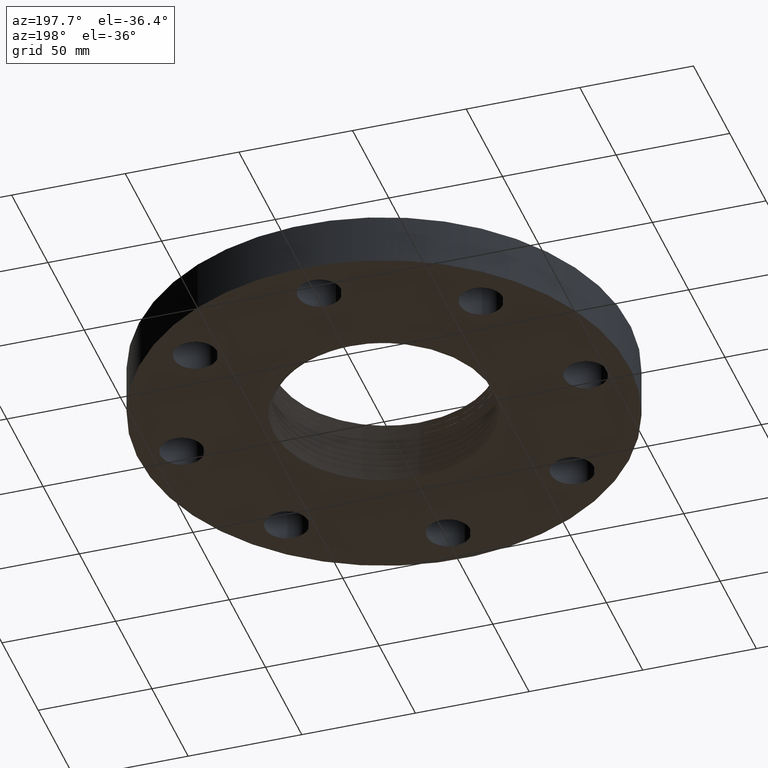
[diagram: clean part render]
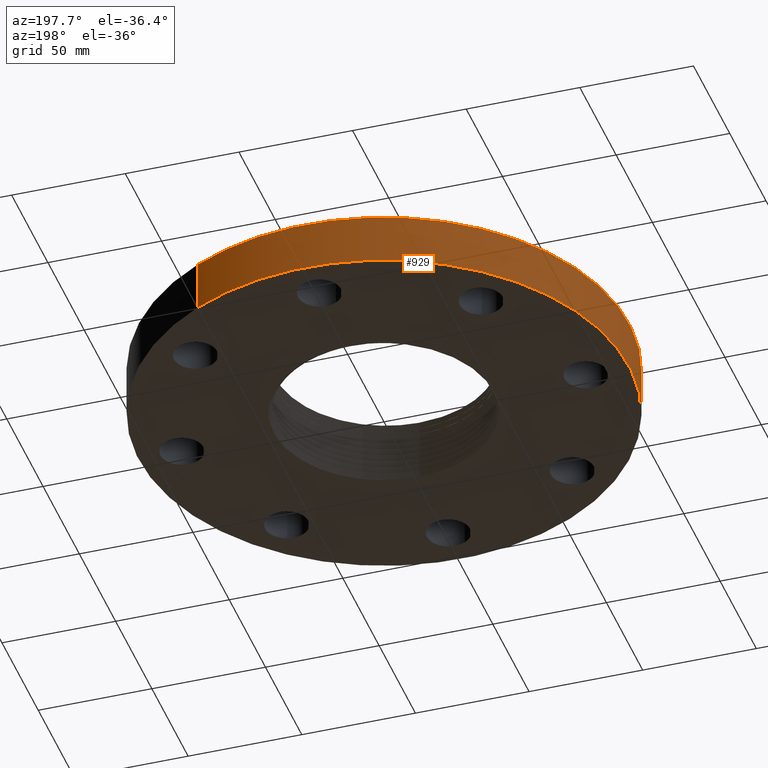
[diagram: same view with one face highlighted and labeled with its STEP entity id]
A machine part, auxiliary view. The second image highlights one B-rep face of the part: STEP entity #929.
In plain terms, the highlighted cylindrical surface (partial cylindrical patch) has radius 107.95 mm, axis along (0, 0, -1).
Its self-contained STEP definition (entity closure, byte-faithful):
#51=AXIS2_PLACEMENT_3D('Circle Axis2P3D',#49,#50,$) ;
#902=AXIS2_PLACEMENT_3D('Cylinder Axis2P3D',#899,#900,#901) ;
#913=AXIS2_PLACEMENT_3D('Circle Axis2P3D',#911,#912,$) ;
#44=CARTESIAN_POINT('Vertex',(2.03755853908,3.72972588805,4.19611851827E-016)) ;
#46=CARTESIAN_POINT('Vertex',(-2.03755853908,-3.72972588805,4.19611851827E-016)) ;
#49=CARTESIAN_POINT('Axis2P3D Location',(0.,0.,0.)) ;
#899=CARTESIAN_POINT('Axis2P3D Location',(0.,0.,0.595000000002)) ;
#904=CARTESIAN_POINT('Line Origine',(-2.03755853908,-3.72972588805,0.440000000002)) ;
#908=CARTESIAN_POINT('Vertex',(-2.03755853908,-3.72972588805,0.880000000004)) ;
#911=CARTESIAN_POINT('Axis2P3D Location',(0.,0.,0.880000000004)) ;
#915=CARTESIAN_POINT('Vertex',(2.03755853908,3.72972588805,0.880000000004)) ;
#918=CARTESIAN_POINT('Line Origine',(2.03755853908,3.72972588805,0.440000000002)) ;
#50=DIRECTION('Axis2P3D Direction',(0.,0.,-0.0393700787402)) ;
#900=DIRECTION('Axis2P3D Direction',(0.,0.,-0.0393700787402)) ;
#901=DIRECTION('Axis2P3D XDirection',(0.0188750212049,0.0345504945626,0.)) ;
#905=DIRECTION('Vector Direction',(0.,0.,-0.0393700787402)) ;
#912=DIRECTION('Axis2P3D Direction',(0.,0.,-0.0393700787402)) ;
#919=DIRECTION('Vector Direction',(0.,0.,-0.0393700787402)) ;
#906=VECTOR('Line Direction',#905,0.0393700787402) ;
#920=VECTOR('Line Direction',#919,0.0393700787402) ;
#924=ORIENTED_EDGE('',*,*,#53,.F.) ;
#925=ORIENTED_EDGE('',*,*,#910,.T.) ;
#926=ORIENTED_EDGE('',*,*,#917,.T.) ;
#927=ORIENTED_EDGE('',*,*,#922,.F.) ;
#929=ADVANCED_FACE('PartBody',(#928),#903,.T.) ;
#52=CIRCLE('generated circle',#51,4.25000000002) ;
#914=CIRCLE('generated circle',#913,4.25000000002) ;
#903=CYLINDRICAL_SURFACE('generated cylinder',#902,4.25000000002) ;
#53=EDGE_CURVE('',#47,#45,#52,.T.) ;
#910=EDGE_CURVE('',#47,#909,#907,.F.) ;
#917=EDGE_CURVE('',#909,#916,#914,.T.) ;
#922=EDGE_CURVE('',#45,#916,#921,.F.) ;
#923=EDGE_LOOP('',(#924,#925,#926,#927)) ;
#928=FACE_OUTER_BOUND('',#923,.T.) ;
#907=LINE('Line',#904,#906) ;
#921=LINE('Line',#918,#920) ;
#45=VERTEX_POINT('',#44) ;
#47=VERTEX_POINT('',#46) ;
#909=VERTEX_POINT('',#908) ;
#916=VERTEX_POINT('',#915) ;